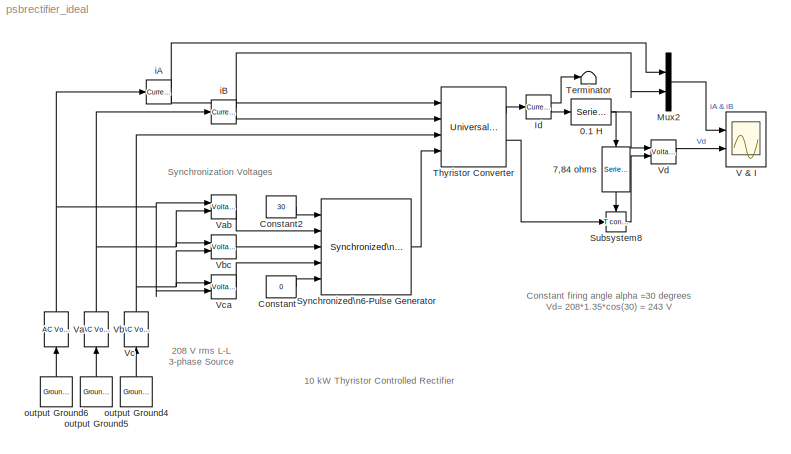
MODEL psbrectifier_ideal
KIND model
CONFIG InitFcn = powericon('psbinitsys',bdroot);
BLOCK [Reference] 0.1 H  REF=powerlib2/Elements/Series RLC Branch
  PSBOutputType = 1
  Ports = [1, 1]
  SourceBlock = powerlib2/Elements/Series RLC Branch
  SourceType = Series RLC Branch
  Tag = PoWeRsYsTeMbLoCk
  a = 0
  b = 100e-3
  c = inf
  mesure = None
BLOCK [Reference] 7,84 ohms  REF=powerlib2/Elements/Series RLC Branch
  PSBOutputType = 1
  Ports = [1, 1]
  SourceBlock = powerlib2/Elements/Series RLC Branch
  SourceType = Series RLC Branch
  Tag = PoWeRsYsTeMbLoCk
  a = 7.84
  b = 0
  c = inf
  mesure = None
BLOCK [Constant] Constant
  Value = 0
BLOCK [Constant] Constant2
  Value = 30
BLOCK [Reference] Id  REF=powerlib2/Measurements/Current Measurement
  OutputType = Magnitude
  PSBOutputType = 01
  PSBequivalent = 0
  PhasorSimulation = off
  Ports = [1, 2]
  SourceBlock = powerlib2/Measurements/Current Measurement
  SourceType = Current Measurement
  Tag = PoWeRsYsTeMmEaSuReMeNt
BLOCK [Mux] Mux2
  Inputs = 2
  Ports = [2, 1]
BLOCK [Reference] Subsystem8  REF=powerlib2/Connectors/T connector
  PSBOutputType = 1
  Ports = [1, 1, 1]
  SourceBlock = powerlib2/Connectors/T connector
  SourceType = Bus Bar
  Tag = PoWeRsYsTeMbLoCk
BLOCK [Reference] Synchronized\n6-Pulse Generator  REF=powerlib_extras/Control \nBlocks/Synchronized\n6-Pulse Generator
  Double_Pulse = off
  Ports = [5, 1]
  SourceBlock = powerlib_extras/Control \nBlocks/Synchronized\n6-Pulse Generator
  SourceType = Synchronized 6-pulse generator
  freq = 60
  pwidth = 10
BLOCK [Terminator] Terminator
BLOCK [Reference] Thyristor Converter  REF=powerlib2/Power\nElectronics/Universal Bridge
  Lon = 1e-6
  PSBOutputType = 111
  Ports = [4, 2]
  Ron = 0.01
  SourceBlock = powerlib2/Power\nElectronics/Universal Bridge
  SourceType = Universal Bridge
  Tag = PoWeRsYsTeMbLoCk
  VFs = [  0.8  0.8  ]
  Vf = 0.8
  arms = 3
  cf = .01e-6
  confi = ABC as input terminals
  device = Thyristors
  gtoparameters = [ 10e-6 , 20e-6 ]
  igbtparameters = [ 1e-6 , 2e-6 ]
  injcc = 500
  mesure = Device currents
BLOCK [Scope] V & I
  DataFormat = Structure
  LimitDataPoints = off
  NumInputPorts = 2
  Ports = [2]
  TimeRange = 0.1
  YMax = 40~250
  YMin = -40~0
  ZoomMode = yonly
BLOCK [Reference] Va  REF=powerlib2/Electrical\nSources/AC Voltage Source
  A = 208*sqrt(2/3)
  F = 60
  P = 0
  PSBOutputType = 1
  Ports = [1, 1]
  SourceBlock = powerlib2/Electrical\nSources/AC Voltage Source
  SourceType = AC Voltage Source
  Tag = PoWeRsYsTeMbLoCk
  mesure = None
  stime = 0
BLOCK [Reference] Vab  REF=powerlib2/Measurements/Voltage Measurement
  OutputType = Magnitude
  PSBOutputType = 0
  PSBequivalent = 0
  PhasorSimulation = off
  Ports = [2, 1]
  SourceBlock = powerlib2/Measurements/Voltage Measurement
  SourceType = Voltage Measurement
  Tag = PoWeRsYsTeMmEaSuReMeNt
BLOCK [Reference] Vb  REF=powerlib2/Electrical\nSources/AC Voltage Source
  A = 208*sqrt(2/3)
  F = 60
  P = -120
  PSBOutputType = 1
  Ports = [1, 1]
  SourceBlock = powerlib2/Electrical\nSources/AC Voltage Source
  SourceType = AC Voltage Source
  Tag = PoWeRsYsTeMbLoCk
  mesure = None
  stime = 0
BLOCK [Reference] Vbc  REF=powerlib2/Measurements/Voltage Measurement
  OutputType = Magnitude
  PSBOutputType = 0
  PSBequivalent = 0
  PhasorSimulation = off
  Ports = [2, 1]
  SourceBlock = powerlib2/Measurements/Voltage Measurement
  SourceType = Voltage Measurement
  Tag = PoWeRsYsTeMmEaSuReMeNt
BLOCK [Reference] Vc  REF=powerlib2/Electrical\nSources/AC Voltage Source
  A = 208*sqrt(2/3)
  F = 60
  P = 120
  PSBOutputType = 1
  Ports = [1, 1]
  SourceBlock = powerlib2/Electrical\nSources/AC Voltage Source
  SourceType = AC Voltage Source
  Tag = PoWeRsYsTeMbLoCk
  mesure = None
  stime = 0
BLOCK [Reference] Vca  REF=powerlib2/Measurements/Voltage Measurement
  OutputType = Magnitude
  PSBOutputType = 0
  PSBequivalent = 0
  PhasorSimulation = off
  Ports = [2, 1]
  SourceBlock = powerlib2/Measurements/Voltage Measurement
  SourceType = Voltage Measurement
  Tag = PoWeRsYsTeMmEaSuReMeNt
BLOCK [Reference] Vd  REF=powerlib2/Measurements/Voltage Measurement
  OutputType = Magnitude
  PSBOutputType = 0
  PSBequivalent = 0
  PhasorSimulation = off
  Ports = [2, 1]
  SourceBlock = powerlib2/Measurements/Voltage Measurement
  SourceType = Voltage Measurement
  Tag = PoWeRsYsTeMmEaSuReMeNt
BLOCK [Reference] iA  REF=powerlib2/Measurements/Current Measurement
  OutputType = Magnitude
  PSBOutputType = 01
  PSBequivalent = 0
  PhasorSimulation = off
  Ports = [1, 2]
  SourceBlock = powerlib2/Measurements/Current Measurement
  SourceType = Current Measurement
  Tag = PoWeRsYsTeMmEaSuReMeNt
BLOCK [Reference] iB  REF=powerlib2/Measurements/Current Measurement
  OutputType = Magnitude
  PSBOutputType = 01
  PSBequivalent = 0
  PhasorSimulation = off
  Ports = [1, 2]
  SourceBlock = powerlib2/Measurements/Current Measurement
  SourceType = Current Measurement
  Tag = PoWeRsYsTeMmEaSuReMeNt
BLOCK [Reference] output Ground4  REF=powerlib2/Connectors/Ground (output)
  PSBOutputType = 1
  Ports = [0, 1]
  SourceBlock = powerlib2/Connectors/Ground (output)
  SourceType = Ground
  Tag = PoWeRsYsTeMbLoCk
BLOCK [Reference] output Ground5  REF=powerlib2/Connectors/Ground (output)
  PSBOutputType = 1
  Ports = [0, 1]
  SourceBlock = powerlib2/Connectors/Ground (output)
  SourceType = Ground
  Tag = PoWeRsYsTeMbLoCk
BLOCK [Reference] output Ground6  REF=powerlib2/Connectors/Ground (output)
  PSBOutputType = 1
  Ports = [0, 1]
  SourceBlock = powerlib2/Connectors/Ground (output)
  SourceType = Ground
  Tag = PoWeRsYsTeMbLoCk
ANNOTATION (root): 10 kW Thyristor Controlled Rectifier
ANNOTATION (root): 208 V rms L-L\n3-phase Source
ANNOTATION (root): Constant firing angle alpha =30 degrees\nVd= 208*1.35*cos(30) = 243 V
ANNOTATION (root): Synchronization Voltages
NET 0.1 H:1 -> 7,84 ohms:1, Vd:1
LINE 7,84 ohms:1 -> Subsystem8:enable
LINE Constant2:1 -> Synchronized\n6-Pulse Generator:1
LINE Constant:1 -> Synchronized\n6-Pulse Generator:5
LINE Id:1 -> Terminator:1
LINE Id:2 -> 0.1 H:1
LINE Mux2:1 -> V & I:1
LINE Subsystem8:1 -> Vd:2
LINE Synchronized\n6-Pulse Generator:1 -> Thyristor Converter:4
LINE Thyristor Converter:1 -> Id:1
LINE Thyristor Converter:2 -> Subsystem8:1
NET Va:1 -> Vab:1, Vca:2, iA:1
LINE Vab:1 -> Synchronized\n6-Pulse Generator:2
NET Vb:1 -> Vab:2, Vbc:1, iB:1
LINE Vbc:1 -> Synchronized\n6-Pulse Generator:3
NET Vc:1 -> Thyristor Converter:3, Vbc:2, Vca:1
LINE Vca:1 -> Synchronized\n6-Pulse Generator:4
LINE Vd:1 -> V & I:2
LINE iA:1 -> Mux2:1
LINE iA:2 -> Thyristor Converter:1
LINE iB:1 -> Mux2:2
LINE iB:2 -> Thyristor Converter:2
LINE output Ground4:1 -> Vc:1
LINE output Ground5:1 -> Vb:1
LINE output Ground6:1 -> Va:1
note: NET lines group one-source signal fan-out (src -> all destinations, sorted); 1:1 wires keep LINE
